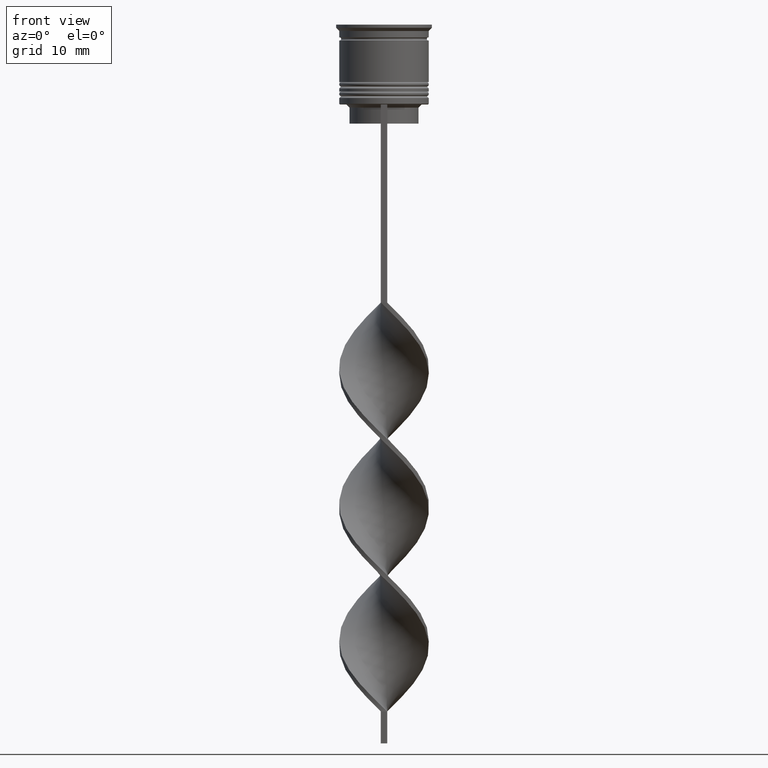
[diagram: clean part render]
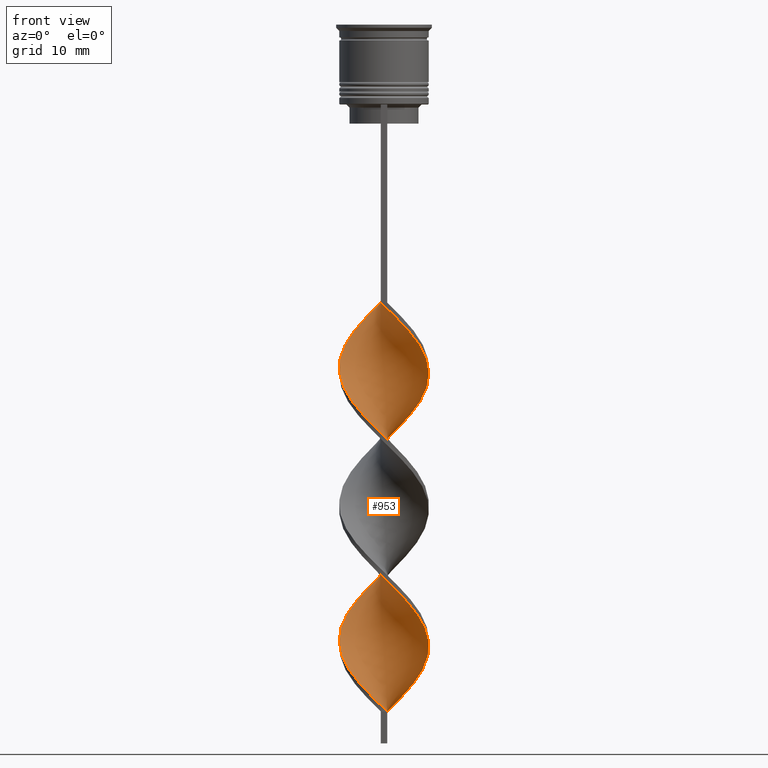
[diagram: same view with one face highlighted and labeled with its STEP entity id]
A machine part, front view. The second image highlights one B-rep face of the part: STEP entity #953.
In plain terms, the highlighted face is a freeform B-spline surface patch.
Its self-contained STEP definition (entity closure, byte-faithful):
#1 = CARTESIAN_POINT ( 'NONE',  ( 1.189738741299877445, -6.916250554126140315, -45.14102564102563520 ) ) ;
#18 = CARTESIAN_POINT ( 'NONE',  ( 4.944061684284414504, -5.052955718088659509, -49.24358974358973740 ) ) ;
#37 = CARTESIAN_POINT ( 'NONE',  ( -1.189738741299881442, -6.916250554126144756, -63.19230769230768630 ) ) ;
#52 = CARTESIAN_POINT ( 'NONE',  ( 6.367811255276632387, -2.949742330640456878, -94.37179487179486159 ) ) ;
#68 = CARTESIAN_POINT ( 'NONE',  ( 6.888693778558720560, 1.340111198836283490, -76.32051282051281760 ) ) ;
#86 = CARTESIAN_POINT ( 'NONE',  ( -0.5000000000000000000, 7.000000000000002665, -43.50000000000000000 ) ) ;
#102 = CARTESIAN_POINT ( 'NONE',  ( -6.009647691495620947, -3.722934602041179097, -57.44871794871794890 ) ) ;
#121 = CARTESIAN_POINT ( 'NONE',  ( -5.016113981771117558, 4.908013908077312415, -48.42307692307691269 ) ) ;
#136 = EDGE_LOOP ( 'NONE', ( #1989, #958, #859, #3056 ) ) ;
#142 = CARTESIAN_POINT ( 'NONE',  ( -2.971407234896037863, 6.414580771288304284, -88.62820512820512420 ) ) ;
#158 = CARTESIAN_POINT ( 'NONE',  ( -6.888693778558718783, -1.340111198836287487, -97.65384615384614619 ) ) ;
#159 = CARTESIAN_POINT ( 'NONE',  ( -7.009230458814042386, 0.3474023247382359014, -96.01282051282051100 ) ) ;
#177 = CARTESIAN_POINT ( 'NONE',  ( -5.016113981771117558, 4.908013908077312415, -91.08974358974359120 ) ) ;
#178 = CARTESIAN_POINT ( 'NONE',  ( 6.725974819057658038, 2.176550059239732882, -77.14102564102563520 ) ) ;
#179 = CARTESIAN_POINT ( 'NONE',  ( 2.160680558725932343, 6.676934889838581633, -105.8589743589743506 ) ) ;
#198 = CARTESIAN_POINT ( 'NONE',  ( 3.695790217132985500, -5.965830593550586869, -68.11538461538459899 ) ) ;
#199 = CARTESIAN_POINT ( 'NONE',  ( -2.810334191479773036, 6.430553765594351212, -68.11538461538459899 ) ) ;
#204 = VERTEX_POINT ( 'NONE', #642 ) ;
#210 = CARTESIAN_POINT ( 'NONE',  ( 7.009230458814037057, 0.3474023247382328483, -54.98717948717948190 ) ) ;
#215 = CARTESIAN_POINT ( 'NONE',  ( 7.009230458814037057, 0.3474023247382328483, -97.65384615384614619 ) ) ;
#219 = CARTESIAN_POINT ( 'NONE',  ( -5.016113981771117558, -4.908013908077305310, -81.24358974358973740 ) ) ;
#235 = CARTESIAN_POINT ( 'NONE',  ( -5.016113981771117558, -4.908013908077305310, -81.24358974358973740 ) ) ;
#237 = CARTESIAN_POINT ( 'NONE',  ( 1.189738741299877445, -6.916250554126140315, -87.80769230769230660 ) ) ;
#259 = CARTESIAN_POINT ( 'NONE',  ( 0.3499538825558234922, -7.060710991611127696, -44.32051282051282470 ) ) ;
#272 = CARTESIAN_POINT ( 'NONE',  ( -0.3499538825558272115, -7.060710991611133025, -106.6794871794871824 ) ) ;
#276 = CARTESIAN_POINT ( 'NONE',  ( -6.725974819057651821, 2.176550059239735102, -73.85897435897436480 ) ) ;
#289 =( BOUNDED_SURFACE ( )  B_SPLINE_SURFACE ( 1, 2, ( 
 ( #3559, #259, #1, #1363, #2789, #3050, #1954, #18, #3031, #1396, #1641, #560, #3321, #1120, #1661, #1915, #296, #2462, #2230, #2249, #3355, #2734, #3070, #3014, #506, #1936, #3597, #1046, #2213, #544, #2482, #1100, #1080, #1321, #814, #2773, #3337, #276, #1380, #2498, #3580, #492, #1604, #833, #1065, #2717, #219, #2443, #2173, #3286, #779, #1899, #3304, #1620, #237, #1340, #2196, #523, #793, #2753, #381, #3104, #52, #1475, #2285, #1754, #1491, #331, #364, #1990, #2318, #2536, #2848, #2583, #349, #1772, #2026, #922, #2600 ),
 ( #86, #2831, #1210, #2043, #3139, #600, #1738, #3448, #1156, #3395, #1192, #888, #2335, #1419, #939, #1701, #2807, #102, #619, #3430, #3087, #582, #3158, #1456, #37, #651, #870, #2885, #315, #1138, #2266, #1436, #2550, #3375, #1722, #2866, #2010, #634, #3124, #2567, #68, #1174, #2302, #3415, #905, #2110, #2637, #3227, #2676, #1249, #3176, #2130, #3243, #2420, #1278, #2953, #698, #1228, #177, #1007, #1565, #2386, #2401, #735, #720, #3517, #158, #1855, #1508, #3190, #2063, #1838, #434, #670, #2972, #396, #450, #2370, #1790 ) ),
 .UNSPECIFIED., .F., .F., .F. ) 
 B_SPLINE_SURFACE_WITH_KNOTS ( ( 2, 2 ),
 ( 3, 2, 2, 2, 2, 2, 2, 2, 2, 2, 2, 2, 2, 2, 2, 2, 2, 2, 2, 2, 2, 2, 2, 2, 2, 2, 2, 2, 2, 2, 2, 2, 2, 2, 2, 2, 2, 2, 2, 3 ),
 ( 0.000000000000000000, 1.000000000000000000 ),
 ( 0.000000000000000000, 0.01923076923076923184, 0.03846153846153846367, 0.05769230769230769551, 0.07692307692307692735, 0.09615384615384615918, 0.1153846153846153910, 0.1346153846153846090, 0.1538461538461538547, 0.1730769230769230727, 0.1923076923076923184, 0.2115384615384615363, 0.2307692307692307820, 0.2500000000000000000, 0.2692307692307692180, 0.2884615384615384359, 0.3076923076923077094, 0.3269230769230769273, 0.3461538461538461453, 0.3653846153846153633, 0.3846153846153846367, 0.4038461538461538547, 0.4230769230769230727, 0.4423076923076922906, 0.4615384615384615641, 0.4807692307692307820, 0.5000000000000000000, 0.5192307692307692735, 0.5384615384615384359, 0.5576923076923077094, 0.5769230769230768718, 0.5961538461538461453, 0.6153846153846154188, 0.6346153846153845812, 0.6538461538461538547, 0.6730769230769231282, 0.6923076923076922906, 0.7115384615384615641, 0.7307692307692307265, 0.7500000000000000000 ),
 .UNSPECIFIED. ) 
 GEOMETRIC_REPRESENTATION_ITEM ( )  RATIONAL_B_SPLINE_SURFACE ( (
 ( 1.000000000000000000, 0.9927088740980539727, 1.000000000000000000, 0.9927088740980539727, 1.000000000000000000, 0.9927088740980539727, 1.000000000000000000, 0.9927088740980539727, 1.000000000000000000, 0.9927088740980539727, 1.000000000000000000, 0.9927088740980539727, 1.000000000000000000, 0.9927088740980539727, 1.000000000000000000, 0.9927088740980539727, 1.000000000000000000, 0.9927088740980539727, 1.000000000000000000, 0.9927088740980539727, 1.000000000000000000, 0.9927088740980539727, 1.000000000000000000, 0.9927088740980539727, 1.000000000000000000, 0.9927088740980539727, 1.000000000000000000, 0.9927088740980539727, 1.000000000000000000, 0.9927088740980539727, 1.000000000000000000, 0.9927088740980539727, 1.000000000000000000, 0.9927088740980539727, 1.000000000000000000, 0.9927088740980539727, 1.000000000000000000, 0.9927088740980539727, 1.000000000000000000, 0.9927088740980539727, 1.000000000000000000, 0.9927088740980539727, 1.000000000000000000, 0.9927088740980539727, 1.000000000000000000, 0.9927088740980539727, 1.000000000000000000, 0.9927088740980539727, 1.000000000000000000, 0.9927088740980539727, 1.000000000000000000, 0.9927088740980539727, 1.000000000000000000, 0.9927088740980539727, 1.000000000000000000, 0.9927088740980539727, 1.000000000000000000, 0.9927088740980539727, 1.000000000000000000, 0.9927088740980539727, 1.000000000000000000, 0.9927088740980539727, 1.000000000000000000, 0.9927088740980539727, 1.000000000000000000, 0.9927088740980539727, 1.000000000000000000, 0.9927088740980539727, 1.000000000000000000, 0.9927088740980539727, 1.000000000000000000, 0.9927088740980539727, 1.000000000000000000, 0.9927088740980539727, 1.000000000000000000, 0.9927088740980539727, 1.000000000000000000, 0.9927088740980539727, 1.000000000000000000),
 ( 1.000000000000000000, 0.9927088740980539727, 1.000000000000000000, 0.9927088740980539727, 1.000000000000000000, 0.9927088740980539727, 1.000000000000000000, 0.9927088740980539727, 1.000000000000000000, 0.9927088740980539727, 1.000000000000000000, 0.9927088740980539727, 1.000000000000000000, 0.9927088740980539727, 1.000000000000000000, 0.9927088740980539727, 1.000000000000000000, 0.9927088740980539727, 1.000000000000000000, 0.9927088740980539727, 1.000000000000000000, 0.9927088740980539727, 1.000000000000000000, 0.9927088740980539727, 1.000000000000000000, 0.9927088740980539727, 1.000000000000000000, 0.9927088740980539727, 1.000000000000000000, 0.9927088740980539727, 1.000000000000000000, 0.9927088740980539727, 1.000000000000000000, 0.9927088740980539727, 1.000000000000000000, 0.9927088740980539727, 1.000000000000000000, 0.9927088740980539727, 1.000000000000000000, 0.9927088740980539727, 1.000000000000000000, 0.9927088740980539727, 1.000000000000000000, 0.9927088740980539727, 1.000000000000000000, 0.9927088740980539727, 1.000000000000000000, 0.9927088740980539727, 1.000000000000000000, 0.9927088740980539727, 1.000000000000000000, 0.9927088740980539727, 1.000000000000000000, 0.9927088740980539727, 1.000000000000000000, 0.9927088740980539727, 1.000000000000000000, 0.9927088740980539727, 1.000000000000000000, 0.9927088740980539727, 1.000000000000000000, 0.9927088740980539727, 1.000000000000000000, 0.9927088740980539727, 1.000000000000000000, 0.9927088740980539727, 1.000000000000000000, 0.9927088740980539727, 1.000000000000000000, 0.9927088740980539727, 1.000000000000000000, 0.9927088740980539727, 1.000000000000000000, 0.9927088740980539727, 1.000000000000000000, 0.9927088740980539727, 1.000000000000000000, 0.9927088740980539727, 1.000000000000000000) ) ) 
 REPRESENTATION_ITEM ( '' )  SURFACE ( )  );
#296 = CARTESIAN_POINT ( 'NONE',  ( 6.722416142319168841, 2.014726087955040157, -56.62820512820513130 ) ) ;
#315 = CARTESIAN_POINT ( 'NONE',  ( 2.160680558725928790, -6.676934889838588738, -66.47435897435896379 ) ) ;
#331 = CARTESIAN_POINT ( 'NONE',  ( 6.967048179568296362, 1.198476987909309566, -98.47435897435896379 ) ) ;
#349 = CARTESIAN_POINT ( 'NONE',  ( 3.695790217132984168, 5.965830593550582428, -104.2179487179487012 ) ) ;
#364 = CARTESIAN_POINT ( 'NONE',  ( 6.722416142319168841, 2.014726087955040157, -99.29487179487178139 ) ) ;
#381 = CARTESIAN_POINT ( 'NONE',  ( 5.476854687890014617, -4.387945160064918859, -92.73076923076922640 ) ) ;
#396 = CARTESIAN_POINT ( 'NONE',  ( -2.029523600043935616, -6.771790116641158264, -105.0384615384615330 ) ) ;
#414 = CARTESIAN_POINT ( 'NONE',  ( 2.160680558725928790, -6.676934889838588738, -66.47435897435896379 ) ) ;
#430 = VECTOR ( 'NONE', #2691, 1000.000000000000000 ) ;
#431 = CARTESIAN_POINT ( 'NONE',  ( 0.4999999999999991673, -7.000000000000002665, -107.5000000000000000 ) ) ;
#434 = CARTESIAN_POINT ( 'NONE',  ( -4.267603233600019585, -5.571136566318106276, -102.5769230769230660 ) ) ;
#435 = CARTESIAN_POINT ( 'NONE',  ( -6.044919434621174759, 3.564961294171264949, -92.73076923076922640 ) ) ;
#450 = CARTESIAN_POINT ( 'NONE',  ( -1.189738741299881442, -6.916250554126144756, -105.8589743589743506 ) ) ;
#451 = CARTESIAN_POINT ( 'NONE',  ( 1.349953882555822382, -6.939289008388872304, -65.65384615384614619 ) ) ;
#452 = CARTESIAN_POINT ( 'NONE',  ( -3.695790217132987721, -5.965830593550580652, -82.88461538461537259 ) ) ;
#468 = CARTESIAN_POINT ( 'NONE',  ( 5.612054764172302868, -4.298947400341755376, -70.57692307692306599 ) ) ;
#469 = CARTESIAN_POINT ( 'NONE',  ( -6.722416142319169730, -2.014726087955041045, -77.96153846153845279 ) ) ;
#488 = CARTESIAN_POINT ( 'NONE',  ( 4.420173199369933137, -5.517080415812873007, -68.93589743589743080 ) ) ;
#489 = CARTESIAN_POINT ( 'NONE',  ( -7.051412738059777752, 0.5036723384328427588, -75.50000000000000000 ) ) ;
#492 = CARTESIAN_POINT ( 'NONE',  ( -6.967048179568297250, -1.198476987909306679, -77.14102564102563520 ) ) ;
#500 = CARTESIAN_POINT ( 'NONE',  ( 3.695790217132984168, 5.965830593550582428, -61.55128205128204399 ) ) ;
#504 = CARTESIAN_POINT ( 'NONE',  ( 6.044919434621172094, 3.564961294171260509, -100.9358974358974308 ) ) ;
#506 = CARTESIAN_POINT ( 'NONE',  ( 2.160680558725932343, 6.676934889838581633, -63.19230769230768630 ) ) ;
#523 = CARTESIAN_POINT ( 'NONE',  ( 3.591144782915614453, -6.089317414547549490, -90.26923076923075939 ) ) ;
#544 = CARTESIAN_POINT ( 'NONE',  ( -2.029523600043928955, 6.771790116641154711, -67.29487179487178139 ) ) ;
#560 = CARTESIAN_POINT ( 'NONE',  ( 6.725974819057650933, -2.176550059239735546, -52.52564102564103621 ) ) ;
#580 = VERTEX_POINT ( 'NONE', #2467 ) ;
#582 = CARTESIAN_POINT ( 'NONE',  ( -3.591144782915619338, -6.089317414547552154, -60.73076923076922640 ) ) ;
#600 = CARTESIAN_POINT ( 'NONE',  ( -4.420173199369934025, 5.517080415812871230, -47.60256410256408799 ) ) ;
#619 = CARTESIAN_POINT ( 'NONE',  ( -5.476854687890019058, -4.387945160064919747, -58.26923076923076650 ) ) ;
#634 = CARTESIAN_POINT ( 'NONE',  ( 6.967048179568301691, -1.198476987909310898, -73.85897435897436480 ) ) ;
#642 = CARTESIAN_POINT ( 'NONE',  ( -0.5000000000000000000, -6.999999999999997335, -43.50000000000000000 ) ) ;
#649 = CARTESIAN_POINT ( 'NONE',  ( 0.4999999999999996669, -2.333333333333336590, -107.5000000000000000 ) ) ;
#651 = CARTESIAN_POINT ( 'NONE',  ( -0.3499538825558272115, -7.060710991611133025, -64.01282051282051100 ) ) ;
#668 = CARTESIAN_POINT ( 'NONE',  ( 0.5000000000000008882, 6.999999999999997335, -107.5000000000000000 ) ) ;
#670 = CARTESIAN_POINT ( 'NONE',  ( -3.591144782915619338, -6.089317414547552154, -103.3974358974358694 ) ) ;
#683 = CARTESIAN_POINT ( 'NONE',  ( -5.612054764172303756, 4.298947400341753600, -49.24358974358974450 ) ) ;
#698 = CARTESIAN_POINT ( 'NONE',  ( -3.695790217132985944, 5.965830593550586869, -89.44871794871794179 ) ) ;
#699 = CARTESIAN_POINT ( 'NONE',  ( 6.477784105070043985, -2.830975188000779408, -72.21794871794871540 ) ) ;
#720 = CARTESIAN_POINT ( 'NONE',  ( -7.009230458814042386, 0.3474023247382359014, -96.01282051282051100 ) ) ;
#721 = CARTESIAN_POINT ( 'NONE',  ( 0.3499538825558280997, 7.060710991611133025, -85.34615384615385381 ) ) ;
#722 = CARTESIAN_POINT ( 'NONE',  ( -3.591144782915613565, 6.089317414547550378, -68.93589743589743080 ) ) ;
#735 = CARTESIAN_POINT ( 'NONE',  ( -6.967048179568302579, 1.198476987909311342, -95.19230769230769340 ) ) ;
#736 = CARTESIAN_POINT ( 'NONE',  ( -4.944061684284419833, -5.052955718088660397, -59.08974358974358410 ) ) ;
#737 = CARTESIAN_POINT ( 'NONE',  ( -6.367811255276632387, 2.949742330640457766, -73.03846153846153300 ) ) ;
#751 = CARTESIAN_POINT ( 'NONE',  ( 4.944061684284414504, -5.052955718088659509, -49.24358974358974450 ) ) ;
#755 = CARTESIAN_POINT ( 'NONE',  ( 5.476854687890019946, 4.387945160064918859, -79.60256410256410220 ) ) ;
#756 = CARTESIAN_POINT ( 'NONE',  ( 2.971407234896037863, 6.414580771288298067, -62.37179487179486870 ) ) ;
#769 = CARTESIAN_POINT ( 'NONE',  ( 5.016113981771116670, 4.908013908077306198, -59.91025641025640880 ) ) ;
#775 = CARTESIAN_POINT ( 'NONE',  ( -6.009647691495613842, 3.722934602041180430, -72.21794871794871540 ) ) ;
#779 = CARTESIAN_POINT ( 'NONE',  ( -2.160680558725935896, -6.676934889838579856, -84.52564102564103621 ) ) ;
#791 = CARTESIAN_POINT ( 'NONE',  ( 5.016113981771116670, 4.908013908077306198, -102.5769230769230660 ) ) ;
#793 = CARTESIAN_POINT ( 'NONE',  ( 4.267603233600013368, -5.571136566318104499, -91.08974358974359120 ) ) ;
#805 = CARTESIAN_POINT ( 'NONE',  ( 1.189738741299877445, -6.916250554126140315, -45.14102564102563520 ) ) ;
#814 = CARTESIAN_POINT ( 'NONE',  ( -5.476854687890014617, 4.387945160064918859, -71.39743589743588359 ) ) ;
#833 = CARTESIAN_POINT ( 'NONE',  ( -6.477784105070042209, -2.830975188000768306, -78.78205128205127039 ) ) ;
#859 = ORIENTED_EDGE ( 'NONE', *, *, #2388, .F. ) ;
#870 = CARTESIAN_POINT ( 'NONE',  ( 0.4999999999999991673, -7.000000000000002665, -64.83333333333332860 ) ) ;
#888 = CARTESIAN_POINT ( 'NONE',  ( -6.967048179568302579, 1.198476987909311342, -52.52564102564103621 ) ) ;
#905 = CARTESIAN_POINT ( 'NONE',  ( 5.476854687890019946, 4.387945160064918859, -79.60256410256410220 ) ) ;
#922 = CARTESIAN_POINT ( 'NONE',  ( 1.349953882555826601, 6.939289008388866975, -106.6794871794871682 ) ) ;
#939 = CARTESIAN_POINT ( 'NONE',  ( -6.888693778558718783, -1.340111198836287487, -54.98717948717948190 ) ) ;
#953 = ADVANCED_FACE ( 'NONE', ( #1971 ), #289, .T. ) ;
#957 = CARTESIAN_POINT ( 'NONE',  ( 1.189738741299885438, 6.916250554126144756, -84.52564102564103621 ) ) ;
#958 = ORIENTED_EDGE ( 'NONE', *, *, #1679, .T. ) ;
#972 = CARTESIAN_POINT ( 'NONE',  ( -4.420173199369934025, 5.517080415812872118, -90.26923076923077360 ) ) ;
#989 = CARTESIAN_POINT ( 'NONE',  ( 7.051412738059782193, 0.5036723384328402053, -75.50000000000000000 ) ) ;
#990 = CARTESIAN_POINT ( 'NONE',  ( -7.009230458814037057, -0.3474023247382289625, -76.32051282051281760 ) ) ;
#1007 = CARTESIAN_POINT ( 'NONE',  ( -5.612054764172303756, 4.298947400341753600, -91.91025641025643722 ) ) ;
#1008 = CARTESIAN_POINT ( 'NONE',  ( -3.591144782915619338, -6.089317414547553042, -60.73076923076922640 ) ) ;
#1009 = CARTESIAN_POINT ( 'NONE',  ( 5.476854687890014617, -4.387945160064918859, -92.73076923076922640 ) ) ;
#1025 = CARTESIAN_POINT ( 'NONE',  ( -6.888693778558718783, -1.340111198836287487, -54.98717948717948190 ) ) ;
#1026 = CARTESIAN_POINT ( 'NONE',  ( 2.810334191479773480, -6.430553765594351212, -89.44871794871794179 ) ) ;
#1038 = CARTESIAN_POINT ( 'NONE',  ( 6.044919434621172094, 3.564961294171260509, -58.26923076923076650 ) ) ;
#1042 = CARTESIAN_POINT ( 'NONE',  ( -4.944061684284419833, -5.052955718088660397, -101.7564102564102484 ) ) ;
#1043 = CARTESIAN_POINT ( 'NONE',  ( -2.029523600043928955, 6.771790116641154711, -67.29487179487178139 ) ) ;
#1046 = CARTESIAN_POINT ( 'NONE',  ( -0.3499538825558217714, 7.060710991611127696, -65.65384615384614619 ) ) ;
#1055 = CARTESIAN_POINT ( 'NONE',  ( 2.029523600043931175, -6.771790116641153823, -45.96153846153845990 ) ) ;
#1056 = CARTESIAN_POINT ( 'NONE',  ( -0.5000000000000000000, -6.999999999999997335, -43.50000000000000000 ) ) ;
#1061 = CARTESIAN_POINT ( 'NONE',  ( -2.029523600043935616, -6.771790116641158264, -105.0384615384615188 ) ) ;
#1062 = CARTESIAN_POINT ( 'NONE',  ( 6.367811255276632387, -2.949742330640456878, -94.37179487179486159 ) ) ;
#1065 = CARTESIAN_POINT ( 'NONE',  ( -6.044919434621172094, -3.564961294171259620, -79.60256410256410220 ) ) ;
#1073 = CARTESIAN_POINT ( 'NONE',  ( 4.267603233600013368, -5.571136566318104499, -48.42307692307691269 ) ) ;
#1076 = CARTESIAN_POINT ( 'NONE',  ( -6.367811255276639493, -2.949742330640456434, -99.29487179487178139 ) ) ;
#1080 = CARTESIAN_POINT ( 'NONE',  ( -4.267603233600012480, 5.571136566318105388, -69.75641025641024839 ) ) ;
#1100 = CARTESIAN_POINT ( 'NONE',  ( -3.591144782915613565, 6.089317414547550378, -68.93589743589743080 ) ) ;
#1120 = CARTESIAN_POINT ( 'NONE',  ( 7.051412738059776864, -0.5036723384328418707, -54.16666666666665719 ) ) ;
#1138 = CARTESIAN_POINT ( 'NONE',  ( 2.971407234896034755, -6.414580771288305172, -67.29487179487178139 ) ) ;
#1156 = CARTESIAN_POINT ( 'NONE',  ( -6.044919434621174759, 3.564961294171264949, -50.06410256410256210 ) ) ;
#1174 = CARTESIAN_POINT ( 'NONE',  ( 6.725974819057658038, 2.176550059239733326, -77.14102564102563520 ) ) ;
#1192 = CARTESIAN_POINT ( 'NONE',  ( -6.722416142319174170, 2.014726087955044598, -51.70512820512820440 ) ) ;
#1208 = B_SPLINE_CURVE_WITH_KNOTS ( 'NONE', 3,
 ( #668, #1802, #649, #1769 ),
 .UNSPECIFIED., .F., .F.,
 ( 4, 4 ),
 ( 0.000000000000000000, 1.000000000000000000 ),
 .UNSPECIFIED. ) ;
#1210 = CARTESIAN_POINT ( 'NONE',  ( -2.160680558725931011, 6.676934889838587850, -45.14102564102563520 ) ) ;
#1228 = CARTESIAN_POINT ( 'NONE',  ( -4.420173199369934025, 5.517080415812871230, -90.26923076923075939 ) ) ;
#1230 = CARTESIAN_POINT ( 'NONE',  ( 6.367811255276638605, 2.949742330640457322, -77.96153846153845279 ) ) ;
#1249 = CARTESIAN_POINT ( 'NONE',  ( 2.029523600043936060, 6.771790116641158264, -83.70512820512820440 ) ) ;
#1250 = CARTESIAN_POINT ( 'NONE',  ( -3.695790217132985944, 5.965830593550586869, -89.44871794871794179 ) ) ;
#1260 = CARTESIAN_POINT ( 'NONE',  ( -0.5000000000000000000, 7.000000000000002665, -43.50000000000000000 ) ) ;
#1265 = CARTESIAN_POINT ( 'NONE',  ( -7.051412738059782193, -0.5036723384328409825, -96.83333333333332860 ) ) ;
#1278 = CARTESIAN_POINT ( 'NONE',  ( -2.160680558725931011, 6.676934889838587850, -87.80769230769230660 ) ) ;
#1279 = CARTESIAN_POINT ( 'NONE',  ( 6.044919434621174759, -3.564961294171264949, -71.39743589743588359 ) ) ;
#1301 = CARTESIAN_POINT ( 'NONE',  ( -6.009647691495620947, -3.722934602041179097, -57.44871794871794890 ) ) ;
#1302 = CARTESIAN_POINT ( 'NONE',  ( 1.349953882555826601, 6.939289008388866975, -106.6794871794871824 ) ) ;
#1314 = CARTESIAN_POINT ( 'NONE',  ( 6.725974819057650933, -2.176550059239735102, -52.52564102564102910 ) ) ;
#1317 = CARTESIAN_POINT ( 'NONE',  ( -6.009647691495620947, -3.722934602041179097, -100.1153846153846132 ) ) ;
#1318 = CARTESIAN_POINT ( 'NONE',  ( 6.477784105070041321, 2.830975188000771858, -100.1153846153846132 ) ) ;
#1321 = CARTESIAN_POINT ( 'NONE',  ( -4.944061684284411839, 5.052955718088659509, -70.57692307692306599 ) ) ;
#1338 = CARTESIAN_POINT ( 'NONE',  ( -1.349953882555827489, -6.939289008388866975, -85.34615384615385381 ) ) ;
#1340 = CARTESIAN_POINT ( 'NONE',  ( 2.029523600043931175, -6.771790116641153823, -88.62820512820513841 ) ) ;
#1352 = CARTESIAN_POINT ( 'NONE',  ( 0.3499538825558234922, -7.060710991611127696, -44.32051282051282470 ) ) ;
#1361 = CARTESIAN_POINT ( 'NONE',  ( -4.420173199369932249, -5.517080415812866789, -82.06410256410255499 ) ) ;
#1363 = CARTESIAN_POINT ( 'NONE',  ( 2.029523600043931175, -6.771790116641153823, -45.96153846153845279 ) ) ;
#1376 = CARTESIAN_POINT ( 'NONE',  ( -6.725974819057657150, -2.176550059239735546, -98.47435897435896379 ) ) ;
#1380 = CARTESIAN_POINT ( 'NONE',  ( -6.888693778558713454, 1.340111198836291706, -74.67948717948718240 ) ) ;
#1396 = CARTESIAN_POINT ( 'NONE',  ( 6.009647691495616506, -3.722934602041177321, -50.88461538461538680 ) ) ;
#1419 = CARTESIAN_POINT ( 'NONE',  ( -7.051412738059782193, -0.5036723384328409825, -54.16666666666665719 ) ) ;
#1436 = CARTESIAN_POINT ( 'NONE',  ( 4.420173199369933137, -5.517080415812872118, -68.93589743589743080 ) ) ;
#1456 = CARTESIAN_POINT ( 'NONE',  ( -2.029523600043935616, -6.771790116641158264, -62.37179487179486870 ) ) ;
#1475 = CARTESIAN_POINT ( 'NONE',  ( 6.725974819057650933, -2.176550059239735546, -95.19230769230769340 ) ) ;
#1491 = CARTESIAN_POINT ( 'NONE',  ( 7.009230458814037057, 0.3474023247382328483, -97.65384615384614619 ) ) ;
#1508 = CARTESIAN_POINT ( 'NONE',  ( -6.367811255276639493, -2.949742330640456434, -99.29487179487178139 ) ) ;
#1523 =( BOUNDED_CURVE ( )  B_SPLINE_CURVE ( 2, ( #2303, #2027, #2403, #1874, #3536, #3191, #121, #683, #2938, #1566, #3228, #2677, #1601, #3244, #1025, #1806, #3502, #1301, #2371, #736, #2421, #1008, #2387, #2919, #1856, #2695, #2973, #451, #414, #1582, #198, #488, #1839, #468, #1279, #699, #2150, #1821, #1530, #989, #2990, #178, #1230, #3262, #755, #2638, #2111, #2354, #3485, #3470, #957, #721, #3518, #2079, #2095, #142, #1250, #972, #2954, #3208, #435, #1549, #2131, #2659, #159, #1265, #2713, #1376, #1076, #1317, #1676, #1042, #2770, #1911, #2437, #1061, #1658, #272, #2494 ),
 .UNSPECIFIED., .F., .T. ) 
 B_SPLINE_CURVE_WITH_KNOTS ( ( 3, 2, 2, 2, 2, 2, 2, 2, 2, 2, 2, 2, 2, 2, 2, 2, 2, 2, 2, 2, 2, 2, 2, 2, 2, 2, 2, 2, 2, 2, 2, 2, 2, 2, 2, 2, 2, 2, 2, 3 ),
 ( 0.000000000000000000, 0.01923076923076923184, 0.03846153846153846367, 0.05769230769230768857, 0.07692307692307692735, 0.09615384615384615918, 0.1153846153846153771, 0.1346153846153846090, 0.1538461538461538547, 0.1730769230769230449, 0.1923076923076923184, 0.2115384615384615363, 0.2307692307692307543, 0.2500000000000000000, 0.2692307692307692180, 0.2884615384615384359, 0.3076923076923077094, 0.3269230769230769273, 0.3461538461538460898, 0.3653846153846153633, 0.3846153846153846367, 0.4038461538461539102, 0.4230769230769230727, 0.4423076923076922906, 0.4615384615384615086, 0.4807692307692307820, 0.5000000000000000000, 0.5192307692307692735, 0.5384615384615384359, 0.5576923076923077094, 0.5769230769230768718, 0.5961538461538461453, 0.6153846153846154188, 0.6346153846153845812, 0.6538461538461538547, 0.6730769230769230171, 0.6923076923076921796, 0.7115384615384615641, 0.7307692307692307265, 0.7500000000000000000 ),
 .UNSPECIFIED. ) 
 CURVE ( )  GEOMETRIC_REPRESENTATION_ITEM ( )  RATIONAL_B_SPLINE_CURVE ( ( 1.000000000000000000, 0.9927088740980539727, 1.000000000000000000, 0.9927088740980539727, 1.000000000000000000, 0.9927088740980539727, 1.000000000000000000, 0.9927088740980539727, 1.000000000000000000, 0.9927088740980539727, 1.000000000000000000, 0.9927088740980539727, 1.000000000000000000, 0.9927088740980539727, 1.000000000000000000, 0.9927088740980539727, 1.000000000000000000, 0.9927088740980539727, 1.000000000000000000, 0.9927088740980539727, 1.000000000000000000, 0.9927088740980539727, 1.000000000000000000, 0.9927088740980539727, 1.000000000000000000, 0.9927088740980539727, 1.000000000000000000, 0.9927088740980539727, 1.000000000000000000, 0.9927088740980539727, 1.000000000000000000, 0.9927088740980539727, 1.000000000000000000, 0.9927088740980539727, 1.000000000000000000, 0.9927088740980539727, 1.000000000000000000, 0.9927088740980539727, 1.000000000000000000, 0.9927088740980539727, 1.000000000000000000, 0.9927088740980539727, 1.000000000000000000, 0.9927088740980539727, 1.000000000000000000, 0.9927088740980539727, 1.000000000000000000, 0.9927088740980539727, 1.000000000000000000, 0.9927088740980539727, 1.000000000000000000, 0.9927088740980539727, 1.000000000000000000, 0.9927088740980539727, 1.000000000000000000, 0.9927088740980539727, 1.000000000000000000, 0.9927088740980539727, 1.000000000000000000, 0.9927088740980539727, 1.000000000000000000, 0.9927088740980539727, 1.000000000000000000, 0.9927088740980539727, 1.000000000000000000, 0.9927088740980539727, 1.000000000000000000, 0.9927088740980539727, 1.000000000000000000, 0.9927088740980539727, 1.000000000000000000, 0.9927088740980539727, 1.000000000000000000, 0.9927088740980539727, 1.000000000000000000, 0.9927088740980539727, 1.000000000000000000, 0.9927088740980539727, 1.000000000000000000 ) ) 
 REPRESENTATION_ITEM ( '' )  );
#1530 = CARTESIAN_POINT ( 'NONE',  ( 7.009230458814042386, -0.3474023247382383994, -74.67948717948718240 ) ) ;
#1549 = CARTESIAN_POINT ( 'NONE',  ( -6.477784105070046650, 2.830975188000775411, -93.55128205128204399 ) ) ;
#1565 = CARTESIAN_POINT ( 'NONE',  ( -6.044919434621174759, 3.564961294171264949, -92.73076923076922640 ) ) ;
#1566 = CARTESIAN_POINT ( 'NONE',  ( -6.477784105070046650, 2.830975188000775411, -50.88461538461537970 ) ) ;
#1567 = CARTESIAN_POINT ( 'NONE',  ( 2.029523600043931175, -6.771790116641153823, -88.62820512820512420 ) ) ;
#1579 = LINE ( 'NONE', #1056, #430 ) ;
#1582 = CARTESIAN_POINT ( 'NONE',  ( 2.971407234896035199, -6.414580771288305172, -67.29487179487178139 ) ) ;
#1583 = CARTESIAN_POINT ( 'NONE',  ( -2.160680558725935896, -6.676934889838579856, -84.52564102564103621 ) ) ;
#1598 = CARTESIAN_POINT ( 'NONE',  ( -0.5000000000000000000, -6.999999999999997335, -43.50000000000000000 ) ) ;
#1601 = CARTESIAN_POINT ( 'NONE',  ( -7.009230458814042386, 0.3474023247382359014, -53.34615384615383959 ) ) ;
#1602 = CARTESIAN_POINT ( 'NONE',  ( 7.051412738059777752, -0.5036723384328418707, -96.83333333333332860 ) ) ;
#1604 = CARTESIAN_POINT ( 'NONE',  ( -6.722416142319169730, -2.014726087955041045, -77.96153846153845279 ) ) ;
#1618 = CARTESIAN_POINT ( 'NONE',  ( 5.612054764172301979, 4.298947400341747382, -101.7564102564102484 ) ) ;
#1620 = CARTESIAN_POINT ( 'NONE',  ( 0.3499538825558234922, -7.060710991611127696, -86.98717948717948900 ) ) ;
#1641 = CARTESIAN_POINT ( 'NONE',  ( 6.367811255276632387, -2.949742330640456878, -51.70512820512820440 ) ) ;
#1658 = CARTESIAN_POINT ( 'NONE',  ( -1.189738741299881442, -6.916250554126144756, -105.8589743589743506 ) ) ;
#1661 = CARTESIAN_POINT ( 'NONE',  ( 7.009230458814037057, 0.3474023247382328483, -54.98717948717948190 ) ) ;
#1676 = CARTESIAN_POINT ( 'NONE',  ( -5.476854687890019058, -4.387945160064919747, -100.9358974358974308 ) ) ;
#1679 = EDGE_CURVE ( 'NONE', #2506, #1906, #1523, .T. ) ;
#1701 = CARTESIAN_POINT ( 'NONE',  ( -6.725974819057657150, -2.176550059239735990, -55.80769230769230660 ) ) ;
#1722 = CARTESIAN_POINT ( 'NONE',  ( 6.044919434621174759, -3.564961294171264949, -71.39743589743588359 ) ) ;
#1738 = CARTESIAN_POINT ( 'NONE',  ( -5.016113981771117558, 4.908013908077312415, -48.42307692307691269 ) ) ;
#1754 = CARTESIAN_POINT ( 'NONE',  ( 7.051412738059776864, -0.5036723384328418707, -96.83333333333332860 ) ) ;
#1769 = CARTESIAN_POINT ( 'NONE',  ( 0.4999999999999991673, -7.000000000000002665, -107.5000000000000000 ) ) ;
#1772 = CARTESIAN_POINT ( 'NONE',  ( 2.971407234896038307, 6.414580771288298067, -105.0384615384615330 ) ) ;
#1790 = CARTESIAN_POINT ( 'NONE',  ( 0.4999999999999991673, -7.000000000000002665, -107.5000000000000000 ) ) ;
#1802 = CARTESIAN_POINT ( 'NONE',  ( 0.5000000000000003331, 2.333333333333331261, -107.5000000000000000 ) ) ;
#1806 = CARTESIAN_POINT ( 'NONE',  ( -6.725974819057657150, -2.176550059239735546, -55.80769230769230660 ) ) ;
#1821 = CARTESIAN_POINT ( 'NONE',  ( 6.967048179568301691, -1.198476987909310676, -73.85897435897436480 ) ) ;
#1838 = CARTESIAN_POINT ( 'NONE',  ( -4.944061684284419833, -5.052955718088660397, -101.7564102564102484 ) ) ;
#1839 = CARTESIAN_POINT ( 'NONE',  ( 5.016113981771116670, -4.908013908077313303, -69.75641025641024839 ) ) ;
#1840 = CARTESIAN_POINT ( 'NONE',  ( 4.420173199369931361, 5.517080415812866789, -103.3974358974358836 ) ) ;
#1855 = CARTESIAN_POINT ( 'NONE',  ( -6.725974819057657150, -2.176550059239735990, -98.47435897435896379 ) ) ;
#1856 = CARTESIAN_POINT ( 'NONE',  ( -1.189738741299881442, -6.916250554126144756, -63.19230769230768630 ) ) ;
#1857 = CARTESIAN_POINT ( 'NONE',  ( -6.967048179568298139, -1.198476987909306679, -77.14102564102563520 ) ) ;
#1870 = CARTESIAN_POINT ( 'NONE',  ( 6.367811255276632387, -2.949742330640456878, -51.70512820512820440 ) ) ;
#1874 = CARTESIAN_POINT ( 'NONE',  ( -2.971407234896037863, 6.414580771288304284, -45.96153846153845990 ) ) ;
#1875 = CARTESIAN_POINT ( 'NONE',  ( -6.477784105070042209, -2.830975188000768306, -78.78205128205127039 ) ) ;
#1895 = CARTESIAN_POINT ( 'NONE',  ( -0.5000000000000000000, -6.999999999999997335, -86.16666666666667140 ) ) ;
#1899 = CARTESIAN_POINT ( 'NONE',  ( -1.349953882555827489, -6.939289008388866975, -85.34615384615383959 ) ) ;
#1906 = VERTEX_POINT ( 'NONE', #431 ) ;
#1911 = CARTESIAN_POINT ( 'NONE',  ( -3.591144782915619338, -6.089317414547553042, -103.3974358974358836 ) ) ;
#1912 = CARTESIAN_POINT ( 'NONE',  ( 4.944061684284414504, -5.052955718088659509, -91.91025641025643722 ) ) ;
#1915 = CARTESIAN_POINT ( 'NONE',  ( 6.967048179568296362, 1.198476987909309566, -55.80769230769230660 ) ) ;
#1928 = CARTESIAN_POINT ( 'NONE',  ( 6.009647691495615618, -3.722934602041177765, -50.88461538461537970 ) ) ;
#1936 = CARTESIAN_POINT ( 'NONE',  ( 1.349953882555826601, 6.939289008388866975, -64.01282051282051100 ) ) ;
#1954 = CARTESIAN_POINT ( 'NONE',  ( 4.267603233600013368, -5.571136566318104499, -48.42307692307691269 ) ) ;
#1971 = FACE_OUTER_BOUND ( 'NONE', #136, .T. ) ;
#1989 = ORIENTED_EDGE ( 'NONE', *, *, #2585, .T. ) ;
#1990 = CARTESIAN_POINT ( 'NONE',  ( 6.477784105070041321, 2.830975188000771858, -100.1153846153846274 ) ) ;
#2010 = CARTESIAN_POINT ( 'NONE',  ( 6.722416142319174170, -2.014726087955045042, -73.03846153846153300 ) ) ;
#2026 = CARTESIAN_POINT ( 'NONE',  ( 2.160680558725932343, 6.676934889838581633, -105.8589743589743506 ) ) ;
#2027 = CARTESIAN_POINT ( 'NONE',  ( -1.349953882555824158, 6.939289008388872304, -44.32051282051282470 ) ) ;
#2043 = CARTESIAN_POINT ( 'NONE',  ( -2.971407234896037863, 6.414580771288304284, -45.96153846153845279 ) ) ;
#2056 = EDGE_CURVE ( 'NONE', #204, #580, #2879, .T. ) ;
#2063 = CARTESIAN_POINT ( 'NONE',  ( -5.476854687890019058, -4.387945160064919747, -100.9358974358974308 ) ) ;
#2079 = CARTESIAN_POINT ( 'NONE',  ( -1.349953882555824158, 6.939289008388872304, -86.98717948717948900 ) ) ;
#2095 = CARTESIAN_POINT ( 'NONE',  ( -2.160680558725931011, 6.676934889838587850, -87.80769230769230660 ) ) ;
#2110 = CARTESIAN_POINT ( 'NONE',  ( 4.944061684284423386, 5.052955718088656845, -80.42307692307691980 ) ) ;
#2111 = CARTESIAN_POINT ( 'NONE',  ( 4.267603233600020474, 5.571136566318105388, -81.24358974358973740 ) ) ;
#2112 = CARTESIAN_POINT ( 'NONE',  ( 1.189738741299877445, -6.916250554126140315, -87.80769230769230660 ) ) ;
#2130 = CARTESIAN_POINT ( 'NONE',  ( 0.3499538825558280997, 7.060710991611133025, -85.34615384615383959 ) ) ;
#2131 = CARTESIAN_POINT ( 'NONE',  ( -6.722416142319174170, 2.014726087955044598, -94.37179487179486159 ) ) ;
#2150 = CARTESIAN_POINT ( 'NONE',  ( 6.722416142319174170, -2.014726087955045042, -73.03846153846153300 ) ) ;
#2165 = CARTESIAN_POINT ( 'NONE',  ( 5.612054764172301979, 4.298947400341747382, -59.08974358974358410 ) ) ;
#2170 = CARTESIAN_POINT ( 'NONE',  ( -5.476854687890014617, 4.387945160064918859, -71.39743589743588359 ) ) ;
#2173 = CARTESIAN_POINT ( 'NONE',  ( -3.695790217132987721, -5.965830593550580652, -82.88461538461537259 ) ) ;
#2193 = CARTESIAN_POINT ( 'NONE',  ( 6.722416142319168841, 2.014726087955040157, -99.29487179487178139 ) ) ;
#2196 = CARTESIAN_POINT ( 'NONE',  ( 2.810334191479773480, -6.430553765594351212, -89.44871794871794179 ) ) ;
#2206 = CARTESIAN_POINT ( 'NONE',  ( 5.476854687890014617, -4.387945160064918859, -50.06410256410256210 ) ) ;
#2213 = CARTESIAN_POINT ( 'NONE',  ( -1.189738741299875224, 6.916250554126141203, -66.47435897435896379 ) ) ;
#2230 = CARTESIAN_POINT ( 'NONE',  ( 6.044919434621172094, 3.564961294171260509, -58.26923076923076650 ) ) ;
#2249 = CARTESIAN_POINT ( 'NONE',  ( 5.612054764172301979, 4.298947400341747382, -59.08974358974359120 ) ) ;
#2266 = CARTESIAN_POINT ( 'NONE',  ( 3.695790217132985500, -5.965830593550586869, -68.11538461538459899 ) ) ;
#2285 = CARTESIAN_POINT ( 'NONE',  ( 6.888693778558713454, -1.340111198836289264, -96.01282051282051100 ) ) ;
#2302 = CARTESIAN_POINT ( 'NONE',  ( 6.367811255276638605, 2.949742330640457322, -77.96153846153845279 ) ) ;
#2303 = CARTESIAN_POINT ( 'NONE',  ( -0.5000000000000000000, 7.000000000000002665, -43.50000000000000000 ) ) ;
#2318 = CARTESIAN_POINT ( 'NONE',  ( 6.044919434621172094, 3.564961294171260509, -100.9358974358974308 ) ) ;
#2335 = CARTESIAN_POINT ( 'NONE',  ( -7.009230458814042386, 0.3474023247382359014, -53.34615384615383959 ) ) ;
#2354 = CARTESIAN_POINT ( 'NONE',  ( 3.591144782915620226, 6.089317414547553042, -82.06410256410255499 ) ) ;
#2370 = CARTESIAN_POINT ( 'NONE',  ( -0.3499538825558272115, -7.060710991611133025, -106.6794871794871682 ) ) ;
#2371 = CARTESIAN_POINT ( 'NONE',  ( -5.476854687890019058, -4.387945160064919747, -58.26923076923076650 ) ) ;
#2386 = CARTESIAN_POINT ( 'NONE',  ( -6.477784105070046650, 2.830975188000774967, -93.55128205128204399 ) ) ;
#2387 = CARTESIAN_POINT ( 'NONE',  ( -2.810334191479776589, -6.430553765594355653, -61.55128205128204399 ) ) ;
#2388 = EDGE_CURVE ( 'NONE', #580, #1906, #1208, .T. ) ;
#2401 = CARTESIAN_POINT ( 'NONE',  ( -6.722416142319174170, 2.014726087955044598, -94.37179487179486159 ) ) ;
#2403 = CARTESIAN_POINT ( 'NONE',  ( -2.160680558725931011, 6.676934889838587850, -45.14102564102563520 ) ) ;
#2404 = CARTESIAN_POINT ( 'NONE',  ( 6.009647691495615618, -3.722934602041177765, -93.55128205128204399 ) ) ;
#2420 = CARTESIAN_POINT ( 'NONE',  ( -1.349953882555824158, 6.939289008388872304, -86.98717948717948900 ) ) ;
#2421 = CARTESIAN_POINT ( 'NONE',  ( -4.267603233600019585, -5.571136566318106276, -59.91025641025640880 ) ) ;
#2422 = CARTESIAN_POINT ( 'NONE',  ( 0.5000000000000008882, 6.999999999999997335, -107.5000000000000000 ) ) ;
#2433 = CARTESIAN_POINT ( 'NONE',  ( 6.967048179568297250, 1.198476987909309344, -55.80769230769230660 ) ) ;
#2437 = CARTESIAN_POINT ( 'NONE',  ( -2.810334191479776589, -6.430553765594355653, -104.2179487179487012 ) ) ;
#2438 = CARTESIAN_POINT ( 'NONE',  ( 2.160680558725932343, 6.676934889838581633, -63.19230769230768630 ) ) ;
#2443 = CARTESIAN_POINT ( 'NONE',  ( -4.420173199369932249, -5.517080415812865901, -82.06410256410255499 ) ) ;
#2458 = CARTESIAN_POINT ( 'NONE',  ( 3.591144782915614453, -6.089317414547549490, -90.26923076923077360 ) ) ;
#2462 = CARTESIAN_POINT ( 'NONE',  ( 6.477784105070041321, 2.830975188000771858, -57.44871794871794890 ) ) ;
#2467 = CARTESIAN_POINT ( 'NONE',  ( 0.5000000000000008882, 6.999999999999997335, -107.5000000000000000 ) ) ;
#2474 = CARTESIAN_POINT ( 'NONE',  ( 3.591144782915614453, -6.089317414547549490, -47.60256410256409509 ) ) ;
#2479 = CARTESIAN_POINT ( 'NONE',  ( 0.5000000000000008882, 6.999999999999997335, -64.83333333333332860 ) ) ;
#2482 = CARTESIAN_POINT ( 'NONE',  ( -2.810334191479773036, 6.430553765594351212, -68.11538461538459899 ) ) ;
#2494 = CARTESIAN_POINT ( 'NONE',  ( 0.4999999999999991673, -7.000000000000002665, -107.5000000000000000 ) ) ;
#2498 = CARTESIAN_POINT ( 'NONE',  ( -7.051412738059776864, 0.5036723384328427588, -75.49999999999998579 ) ) ;
#2506 = VERTEX_POINT ( 'NONE', #1260 ) ;
#2536 = CARTESIAN_POINT ( 'NONE',  ( 5.612054764172301979, 4.298947400341747382, -101.7564102564102484 ) ) ;
#2550 = CARTESIAN_POINT ( 'NONE',  ( 5.016113981771116670, -4.908013908077313303, -69.75641025641024839 ) ) ;
#2567 = CARTESIAN_POINT ( 'NONE',  ( 7.051412738059782193, 0.5036723384328400943, -75.49999999999998579 ) ) ;
#2583 = CARTESIAN_POINT ( 'NONE',  ( 4.420173199369931361, 5.517080415812865901, -103.3974358974358694 ) ) ;
#2585 = EDGE_CURVE ( 'NONE', #204, #2506, #1579, .T. ) ;
#2600 = CARTESIAN_POINT ( 'NONE',  ( 0.5000000000000008882, 6.999999999999997335, -107.5000000000000000 ) ) ;
#2637 = CARTESIAN_POINT ( 'NONE',  ( 4.267603233600020474, 5.571136566318105388, -81.24358974358973740 ) ) ;
#2638 = CARTESIAN_POINT ( 'NONE',  ( 4.944061684284423386, 5.052955718088656845, -80.42307692307691980 ) ) ;
#2659 = CARTESIAN_POINT ( 'NONE',  ( -6.967048179568302579, 1.198476987909311120, -95.19230769230769340 ) ) ;
#2676 = CARTESIAN_POINT ( 'NONE',  ( 2.810334191479780586, 6.430553765594353877, -82.88461538461537259 ) ) ;
#2677 = CARTESIAN_POINT ( 'NONE',  ( -6.967048179568302579, 1.198476987909311120, -52.52564102564102910 ) ) ;
#2678 = CARTESIAN_POINT ( 'NONE',  ( 6.967048179568297250, 1.198476987909309344, -98.47435897435896379 ) ) ;
#2691 = DIRECTION ( 'NONE',  ( 0.000000000000000000, 1.000000000000000000, 0.000000000000000000 ) ) ;
#2695 = CARTESIAN_POINT ( 'NONE',  ( -0.3499538825558272115, -7.060710991611133025, -64.01282051282051100 ) ) ;
#2696 = CARTESIAN_POINT ( 'NONE',  ( 3.695790217132984168, 5.965830593550582428, -104.2179487179487012 ) ) ;
#2709 = CARTESIAN_POINT ( 'NONE',  ( 7.051412738059777752, -0.5036723384328418707, -54.16666666666666430 ) ) ;
#2713 = CARTESIAN_POINT ( 'NONE',  ( -6.888693778558718783, -1.340111198836287487, -97.65384615384614619 ) ) ;
#2714 = CARTESIAN_POINT ( 'NONE',  ( 4.267603233600013368, -5.571136566318104499, -91.08974358974359120 ) ) ;
#2717 = CARTESIAN_POINT ( 'NONE',  ( -5.612054764172303756, -4.298947400341743830, -80.42307692307691980 ) ) ;
#2731 = CARTESIAN_POINT ( 'NONE',  ( -6.888693778558713454, 1.340111198836291706, -74.67948717948718240 ) ) ;
#2734 = CARTESIAN_POINT ( 'NONE',  ( 4.420173199369931361, 5.517080415812865901, -60.73076923076922640 ) ) ;
#2750 = CARTESIAN_POINT ( 'NONE',  ( -6.044919434621172094, -3.564961294171259620, -79.60256410256410220 ) ) ;
#2753 = CARTESIAN_POINT ( 'NONE',  ( 4.944061684284414504, -5.052955718088659509, -91.91025641025643722 ) ) ;
#2770 = CARTESIAN_POINT ( 'NONE',  ( -4.267603233600019585, -5.571136566318106276, -102.5769230769230660 ) ) ;
#2773 = CARTESIAN_POINT ( 'NONE',  ( -6.009647691495614730, 3.722934602041180430, -72.21794871794871540 ) ) ;
#2789 = CARTESIAN_POINT ( 'NONE',  ( 2.810334191479773480, -6.430553765594351212, -46.78205128205127750 ) ) ;
#2807 = CARTESIAN_POINT ( 'NONE',  ( -6.367811255276639493, -2.949742330640456434, -56.62820512820513130 ) ) ;
#2831 = CARTESIAN_POINT ( 'NONE',  ( -1.349953882555824158, 6.939289008388872304, -44.32051282051282470 ) ) ;
#2848 = CARTESIAN_POINT ( 'NONE',  ( 5.016113981771116670, 4.908013908077306198, -102.5769230769230660 ) ) ;
#2866 = CARTESIAN_POINT ( 'NONE',  ( 6.477784105070043985, -2.830975188000778964, -72.21794871794871540 ) ) ;
#2879 =( BOUNDED_CURVE ( )  B_SPLINE_CURVE ( 2, ( #1598, #1352, #805, #1055, #3256, #2474, #1073, #751, #2206, #1928, #1870, #1314, #2984, #2709, #210, #2433, #3273, #3548, #1038, #2165, #769, #3007, #500, #756, #2438, #3281, #2479, #3577, #2955, #1043, #199, #722, #2974, #3556, #2170, #775, #737, #3245, #2731, #489, #990, #1857, #469, #1875, #2750, #3263, #235, #1361, #452, #3229, #1583, #1338, #1895, #2991, #2112, #1567, #1026, #2458, #2714, #1912, #1009, #2404, #1062, #3011, #3301, #1602, #215, #2678, #2193, #1318, #504, #1618, #791, #1840, #2696, #3519, #179, #1302, #2422 ),
 .UNSPECIFIED., .F., .T. ) 
 B_SPLINE_CURVE_WITH_KNOTS ( ( 3, 2, 2, 2, 2, 2, 2, 2, 2, 2, 2, 2, 2, 2, 2, 2, 2, 2, 2, 2, 2, 2, 2, 2, 2, 2, 2, 2, 2, 2, 2, 2, 2, 2, 2, 2, 2, 2, 2, 3 ),
 ( 0.000000000000000000, 0.01923076923076923184, 0.03846153846153846367, 0.05769230769230768857, 0.07692307692307692735, 0.09615384615384615918, 0.1153846153846153771, 0.1346153846153846090, 0.1538461538461538547, 0.1730769230769230449, 0.1923076923076923184, 0.2115384615384615363, 0.2307692307692307543, 0.2500000000000000000, 0.2692307692307692180, 0.2884615384615384359, 0.3076923076923077094, 0.3269230769230769273, 0.3461538461538460898, 0.3653846153846153633, 0.3846153846153846367, 0.4038461538461539102, 0.4230769230769230727, 0.4423076923076922906, 0.4615384615384615086, 0.4807692307692307820, 0.5000000000000000000, 0.5192307692307692735, 0.5384615384615384359, 0.5576923076923077094, 0.5769230769230768718, 0.5961538461538461453, 0.6153846153846154188, 0.6346153846153845812, 0.6538461538461538547, 0.6730769230769230171, 0.6923076923076921796, 0.7115384615384615641, 0.7307692307692307265, 0.7500000000000000000 ),
 .UNSPECIFIED. ) 
 CURVE ( )  GEOMETRIC_REPRESENTATION_ITEM ( )  RATIONAL_B_SPLINE_CURVE ( ( 1.000000000000000000, 0.9927088740980539727, 1.000000000000000000, 0.9927088740980539727, 1.000000000000000000, 0.9927088740980539727, 1.000000000000000000, 0.9927088740980539727, 1.000000000000000000, 0.9927088740980539727, 1.000000000000000000, 0.9927088740980539727, 1.000000000000000000, 0.9927088740980539727, 1.000000000000000000, 0.9927088740980539727, 1.000000000000000000, 0.9927088740980539727, 1.000000000000000000, 0.9927088740980539727, 1.000000000000000000, 0.9927088740980539727, 1.000000000000000000, 0.9927088740980539727, 1.000000000000000000, 0.9927088740980539727, 1.000000000000000000, 0.9927088740980539727, 1.000000000000000000, 0.9927088740980539727, 1.000000000000000000, 0.9927088740980539727, 1.000000000000000000, 0.9927088740980539727, 1.000000000000000000, 0.9927088740980539727, 1.000000000000000000, 0.9927088740980539727, 1.000000000000000000, 0.9927088740980539727, 1.000000000000000000, 0.9927088740980539727, 1.000000000000000000, 0.9927088740980539727, 1.000000000000000000, 0.9927088740980539727, 1.000000000000000000, 0.9927088740980539727, 1.000000000000000000, 0.9927088740980539727, 1.000000000000000000, 0.9927088740980539727, 1.000000000000000000, 0.9927088740980539727, 1.000000000000000000, 0.9927088740980539727, 1.000000000000000000, 0.9927088740980539727, 1.000000000000000000, 0.9927088740980539727, 1.000000000000000000, 0.9927088740980539727, 1.000000000000000000, 0.9927088740980539727, 1.000000000000000000, 0.9927088740980539727, 1.000000000000000000, 0.9927088740980539727, 1.000000000000000000, 0.9927088740980539727, 1.000000000000000000, 0.9927088740980539727, 1.000000000000000000, 0.9927088740980539727, 1.000000000000000000, 0.9927088740980539727, 1.000000000000000000, 0.9927088740980539727, 1.000000000000000000 ) ) 
 REPRESENTATION_ITEM ( '' )  );
#2885 = CARTESIAN_POINT ( 'NONE',  ( 1.349953882555822382, -6.939289008388872304, -65.65384615384614619 ) ) ;
#2919 = CARTESIAN_POINT ( 'NONE',  ( -2.029523600043935616, -6.771790116641158264, -62.37179487179486870 ) ) ;
#2938 = CARTESIAN_POINT ( 'NONE',  ( -6.044919434621174759, 3.564961294171264949, -50.06410256410256210 ) ) ;
#2953 = CARTESIAN_POINT ( 'NONE',  ( -2.971407234896037863, 6.414580771288304284, -88.62820512820513841 ) ) ;
#2954 = CARTESIAN_POINT ( 'NONE',  ( -5.016113981771117558, 4.908013908077312415, -91.08974358974359120 ) ) ;
#2955 = CARTESIAN_POINT ( 'NONE',  ( -1.189738741299875224, 6.916250554126141203, -66.47435897435896379 ) ) ;
#2972 = CARTESIAN_POINT ( 'NONE',  ( -2.810334191479776589, -6.430553765594355653, -104.2179487179487012 ) ) ;
#2973 = CARTESIAN_POINT ( 'NONE',  ( 0.4999999999999991673, -7.000000000000002665, -64.83333333333332860 ) ) ;
#2974 = CARTESIAN_POINT ( 'NONE',  ( -4.267603233600012480, 5.571136566318105388, -69.75641025641024839 ) ) ;
#2984 = CARTESIAN_POINT ( 'NONE',  ( 6.888693778558713454, -1.340111198836289264, -53.34615384615383959 ) ) ;
#2990 = CARTESIAN_POINT ( 'NONE',  ( 6.888693778558720560, 1.340111198836283490, -76.32051282051281760 ) ) ;
#2991 = CARTESIAN_POINT ( 'NONE',  ( 0.3499538825558234922, -7.060710991611127696, -86.98717948717948900 ) ) ;
#3007 = CARTESIAN_POINT ( 'NONE',  ( 4.420173199369931361, 5.517080415812866789, -60.73076923076922640 ) ) ;
#3011 = CARTESIAN_POINT ( 'NONE',  ( 6.725974819057650933, -2.176550059239735102, -95.19230769230769340 ) ) ;
#3014 = CARTESIAN_POINT ( 'NONE',  ( 2.971407234896038307, 6.414580771288298067, -62.37179487179486870 ) ) ;
#3031 = CARTESIAN_POINT ( 'NONE',  ( 5.476854687890014617, -4.387945160064918859, -50.06410256410256210 ) ) ;
#3050 = CARTESIAN_POINT ( 'NONE',  ( 3.591144782915614453, -6.089317414547549490, -47.60256410256408799 ) ) ;
#3056 = ORIENTED_EDGE ( 'NONE', *, *, #2056, .F. ) ;
#3070 = CARTESIAN_POINT ( 'NONE',  ( 3.695790217132984168, 5.965830593550582428, -61.55128205128204399 ) ) ;
#3087 = CARTESIAN_POINT ( 'NONE',  ( -4.267603233600019585, -5.571136566318106276, -59.91025641025640880 ) ) ;
#3104 = CARTESIAN_POINT ( 'NONE',  ( 6.009647691495616506, -3.722934602041177321, -93.55128205128204399 ) ) ;
#3124 = CARTESIAN_POINT ( 'NONE',  ( 7.009230458814042386, -0.3474023247382383994, -74.67948717948718240 ) ) ;
#3139 = CARTESIAN_POINT ( 'NONE',  ( -3.695790217132985944, 5.965830593550586869, -46.78205128205127750 ) ) ;
#3158 = CARTESIAN_POINT ( 'NONE',  ( -2.810334191479776589, -6.430553765594355653, -61.55128205128204399 ) ) ;
#3176 = CARTESIAN_POINT ( 'NONE',  ( 1.189738741299885438, 6.916250554126144756, -84.52564102564103621 ) ) ;
#3190 = CARTESIAN_POINT ( 'NONE',  ( -6.009647691495620947, -3.722934602041179097, -100.1153846153846274 ) ) ;
#3191 = CARTESIAN_POINT ( 'NONE',  ( -4.420173199369934025, 5.517080415812872118, -47.60256410256409509 ) ) ;
#3208 = CARTESIAN_POINT ( 'NONE',  ( -5.612054764172303756, 4.298947400341753600, -91.91025641025643722 ) ) ;
#3227 = CARTESIAN_POINT ( 'NONE',  ( 3.591144782915620226, 6.089317414547552154, -82.06410256410255499 ) ) ;
#3228 = CARTESIAN_POINT ( 'NONE',  ( -6.722416142319174170, 2.014726087955044598, -51.70512820512820440 ) ) ;
#3229 = CARTESIAN_POINT ( 'NONE',  ( -2.971407234896038752, -6.414580771288298067, -83.70512820512820440 ) ) ;
#3243 = CARTESIAN_POINT ( 'NONE',  ( -0.5000000000000000000, 7.000000000000002665, -86.16666666666667140 ) ) ;
#3244 = CARTESIAN_POINT ( 'NONE',  ( -7.051412738059782193, -0.5036723384328409825, -54.16666666666666430 ) ) ;
#3245 = CARTESIAN_POINT ( 'NONE',  ( -6.725974819057651821, 2.176550059239734658, -73.85897435897436480 ) ) ;
#3256 = CARTESIAN_POINT ( 'NONE',  ( 2.810334191479773480, -6.430553765594351212, -46.78205128205127750 ) ) ;
#3262 = CARTESIAN_POINT ( 'NONE',  ( 6.009647691495623612, 3.722934602041175989, -78.78205128205127039 ) ) ;
#3263 = CARTESIAN_POINT ( 'NONE',  ( -5.612054764172303756, -4.298947400341743830, -80.42307692307691980 ) ) ;
#3273 = CARTESIAN_POINT ( 'NONE',  ( 6.722416142319168841, 2.014726087955040157, -56.62820512820513130 ) ) ;
#3281 = CARTESIAN_POINT ( 'NONE',  ( 1.349953882555826601, 6.939289008388866975, -64.01282051282051100 ) ) ;
#3286 = CARTESIAN_POINT ( 'NONE',  ( -2.971407234896039196, -6.414580771288298067, -83.70512820512820440 ) ) ;
#3301 = CARTESIAN_POINT ( 'NONE',  ( 6.888693778558713454, -1.340111198836289264, -96.01282051282051100 ) ) ;
#3304 = CARTESIAN_POINT ( 'NONE',  ( -0.5000000000000000000, -6.999999999999997335, -86.16666666666667140 ) ) ;
#3321 = CARTESIAN_POINT ( 'NONE',  ( 6.888693778558713454, -1.340111198836289264, -53.34615384615383959 ) ) ;
#3337 = CARTESIAN_POINT ( 'NONE',  ( -6.367811255276632387, 2.949742330640457766, -73.03846153846153300 ) ) ;
#3355 = CARTESIAN_POINT ( 'NONE',  ( 5.016113981771116670, 4.908013908077306198, -59.91025641025640880 ) ) ;
#3375 = CARTESIAN_POINT ( 'NONE',  ( 5.612054764172302868, -4.298947400341755376, -70.57692307692306599 ) ) ;
#3395 = CARTESIAN_POINT ( 'NONE',  ( -6.477784105070046650, 2.830975188000774967, -50.88461538461538680 ) ) ;
#3415 = CARTESIAN_POINT ( 'NONE',  ( 6.009647691495623612, 3.722934602041175989, -78.78205128205127039 ) ) ;
#3430 = CARTESIAN_POINT ( 'NONE',  ( -4.944061684284419833, -5.052955718088660397, -59.08974358974359120 ) ) ;
#3448 = CARTESIAN_POINT ( 'NONE',  ( -5.612054764172303756, 4.298947400341753600, -49.24358974358973740 ) ) ;
#3470 = CARTESIAN_POINT ( 'NONE',  ( 2.029523600043936504, 6.771790116641158264, -83.70512820512820440 ) ) ;
#3485 = CARTESIAN_POINT ( 'NONE',  ( 2.810334191479780586, 6.430553765594353877, -82.88461538461537259 ) ) ;
#3502 = CARTESIAN_POINT ( 'NONE',  ( -6.367811255276639493, -2.949742330640456434, -56.62820512820513130 ) ) ;
#3517 = CARTESIAN_POINT ( 'NONE',  ( -7.051412738059782193, -0.5036723384328409825, -96.83333333333332860 ) ) ;
#3518 = CARTESIAN_POINT ( 'NONE',  ( -0.5000000000000000000, 7.000000000000002665, -86.16666666666667140 ) ) ;
#3519 = CARTESIAN_POINT ( 'NONE',  ( 2.971407234896037863, 6.414580771288298067, -105.0384615384615188 ) ) ;
#3536 = CARTESIAN_POINT ( 'NONE',  ( -3.695790217132985944, 5.965830593550586869, -46.78205128205127750 ) ) ;
#3548 = CARTESIAN_POINT ( 'NONE',  ( 6.477784105070041321, 2.830975188000771858, -57.44871794871794890 ) ) ;
#3556 = CARTESIAN_POINT ( 'NONE',  ( -4.944061684284411839, 5.052955718088659509, -70.57692307692306599 ) ) ;
#3559 = CARTESIAN_POINT ( 'NONE',  ( -0.5000000000000000000, -6.999999999999997335, -43.50000000000000000 ) ) ;
#3577 = CARTESIAN_POINT ( 'NONE',  ( -0.3499538825558217714, 7.060710991611127696, -65.65384615384614619 ) ) ;
#3580 = CARTESIAN_POINT ( 'NONE',  ( -7.009230458814037057, -0.3474023247382289625, -76.32051282051281760 ) ) ;
#3597 = CARTESIAN_POINT ( 'NONE',  ( 0.5000000000000008882, 6.999999999999997335, -64.83333333333332860 ) ) ;